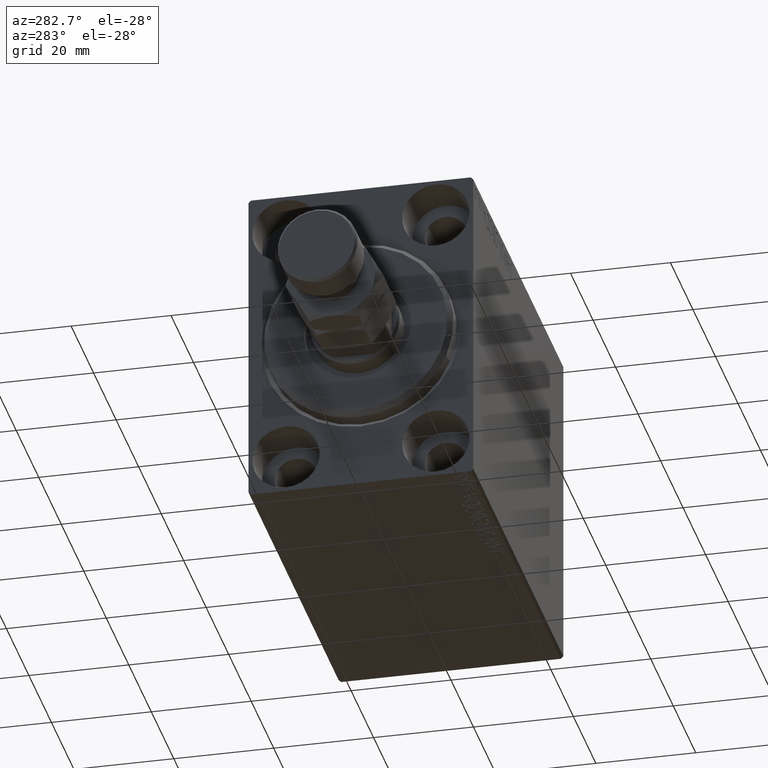
[diagram: clean part render]
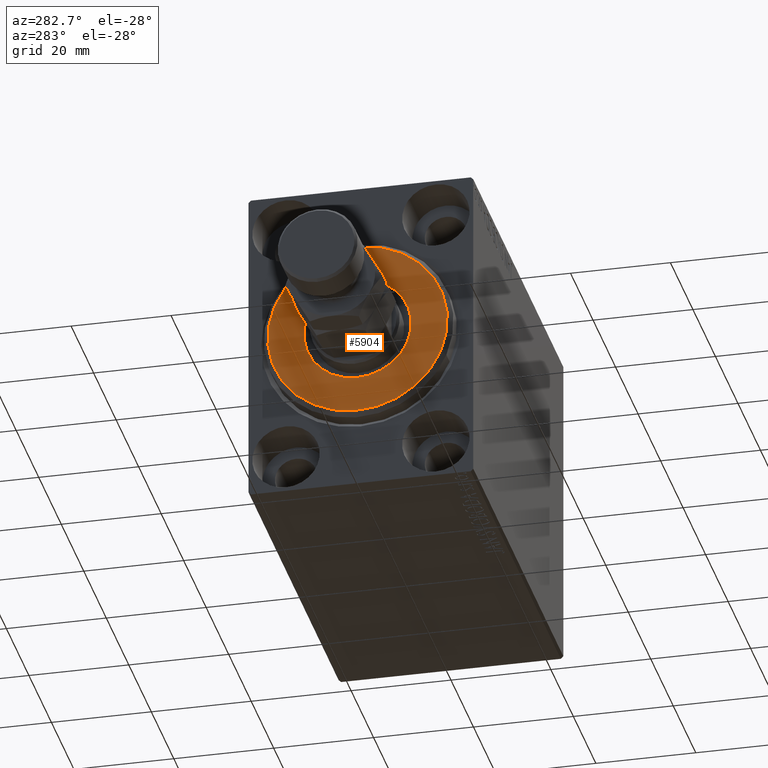
[diagram: same view with one face highlighted and labeled with its STEP entity id]
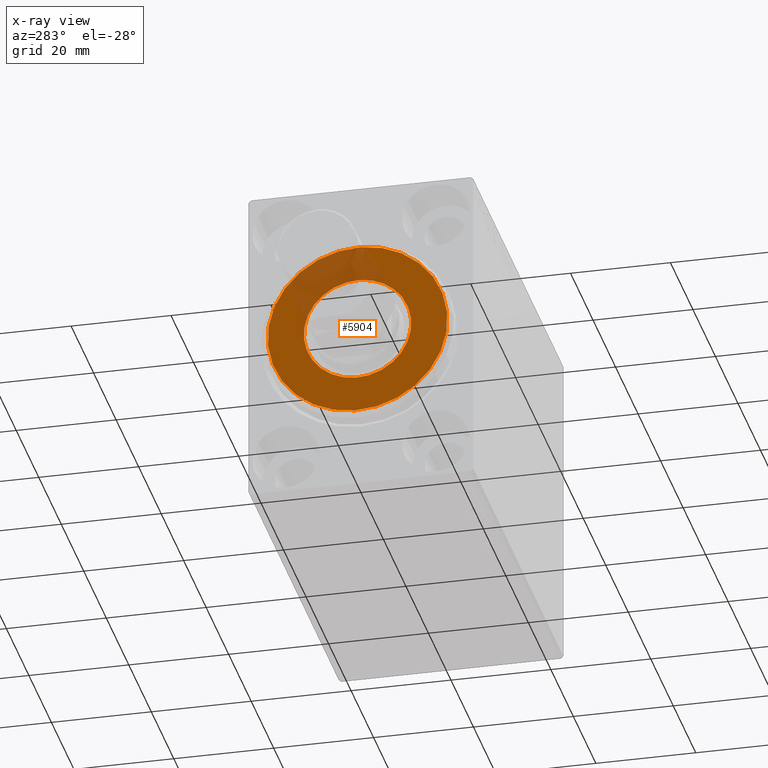
[diagram: x-ray of the same camera — body ghosted, the highlighted face saturated]
A machine part, auxiliary view. The second image highlights one B-rep face of the part: STEP entity #5904.
The next image is the same camera in x-ray: the body ghosted, the highlighted face saturated — about 21% of this face is hidden behind the body in this view.
In plain terms, the highlighted planar face has unit normal (-1, 0, 0).
Its self-contained STEP definition (entity closure, byte-faithful):
#131 = DIRECTION ( 'NONE',  ( 0.000000000000000000, 0.000000000000000000, -1.000000000000000000 ) ) ;
#171 = CARTESIAN_POINT ( 'NONE',  ( 3.000000000000000000, 0.000000000000000000, 0.000000000000000000 ) ) ;
#1124 = VERTEX_POINT ( 'NONE', #44228 ) ;
#3476 = EDGE_CURVE ( 'NONE', #7577, #4686, #32978, .T. ) ;
#3644 = DIRECTION ( 'NONE',  ( 0.000000000000000000, 0.000000000000000000, -1.000000000000000000 ) ) ;
#4686 = VERTEX_POINT ( 'NONE', #4733 ) ;
#4733 = CARTESIAN_POINT ( 'NONE',  ( 3.000000000000000000, 2.265596578422603002E-15, -17.99999999999999645 ) ) ;
#5187 = EDGE_LOOP ( 'NONE', ( #25722, #7593 ) ) ;
#5904 = ADVANCED_FACE ( 'NONE', ( #16285, #19991 ), #30313, .T. ) ;
#6206 = CARTESIAN_POINT ( 'NONE',  ( 3.000000000000000000, 0.000000000000000000, 0.000000000000000000 ) ) ;
#7577 = VERTEX_POINT ( 'NONE', #35351 ) ;
#7593 = ORIENTED_EDGE ( 'NONE', *, *, #7768, .T. ) ;
#7768 = EDGE_CURVE ( 'NONE', #4686, #7577, #44717, .T. ) ;
#8733 = DIRECTION ( 'NONE',  ( 1.000000000000000000, -0.000000000000000000, 0.000000000000000000 ) ) ;
#9656 = DIRECTION ( 'NONE',  ( 0.000000000000000000, 0.000000000000000000, -1.000000000000000000 ) ) ;
#11207 = DIRECTION ( 'NONE',  ( -1.000000000000000000, 0.000000000000000000, -0.000000000000000000 ) ) ;
#13908 = CARTESIAN_POINT ( 'NONE',  ( 3.000000000000000000, 0.000000000000000000, 0.000000000000000000 ) ) ;
#13909 = AXIS2_PLACEMENT_3D ( 'NONE', #13908, #38498, #131 ) ;
#15149 = EDGE_CURVE ( 'NONE', #29222, #1124, #36665, .T. ) ;
#15870 = EDGE_LOOP ( 'NONE', ( #31894, #44951 ) ) ;
#16285 = FACE_OUTER_BOUND ( 'NONE', #5187, .T. ) ;
#17122 = EDGE_CURVE ( 'NONE', #1124, #29222, #23449, .T. ) ;
#19991 = FACE_BOUND ( 'NONE', #15870, .T. ) ;
#20662 = CARTESIAN_POINT ( 'NONE',  ( 3.000000000000000000, 0.000000000000000000, 0.000000000000000000 ) ) ;
#21314 = DIRECTION ( 'NONE',  ( 0.000000000000000000, 0.000000000000000000, -1.000000000000000000 ) ) ;
#23449 = CIRCLE ( 'NONE', #41840, 10.75000000000000000 ) ;
#24739 = DIRECTION ( 'NONE',  ( 1.000000000000000000, -0.000000000000000000, 0.000000000000000000 ) ) ;
#25610 = AXIS2_PLACEMENT_3D ( 'NONE', #20662, #24739, #3644 ) ;
#25722 = ORIENTED_EDGE ( 'NONE', *, *, #3476, .T. ) ;
#27085 = CARTESIAN_POINT ( 'NONE',  ( 3.000000000000000000, 0.000000000000000000, 0.000000000000000000 ) ) ;
#29222 = VERTEX_POINT ( 'NONE', #44099 ) ;
#30313 = PLANE ( 'NONE',  #37409 ) ;
#31894 = ORIENTED_EDGE ( 'NONE', *, *, #17122, .T. ) ;
#32978 = CIRCLE ( 'NONE', #13909, 17.99999999999999645 ) ;
#32988 = AXIS2_PLACEMENT_3D ( 'NONE', #171, #11207, #21314 ) ;
#33542 = DIRECTION ( 'NONE',  ( 0.000000000000000000, 0.000000000000000000, -1.000000000000000000 ) ) ;
#33773 = DIRECTION ( 'NONE',  ( -1.000000000000000000, 0.000000000000000000, -0.000000000000000000 ) ) ;
#35351 = CARTESIAN_POINT ( 'NONE',  ( 3.000000000000000000, 0.000000000000000000, 17.99999999999999645 ) ) ;
#36665 = CIRCLE ( 'NONE', #32988, 10.75000000000000000 ) ;
#37409 = AXIS2_PLACEMENT_3D ( 'NONE', #6206, #8733, #33542 ) ;
#38498 = DIRECTION ( 'NONE',  ( 1.000000000000000000, -0.000000000000000000, 0.000000000000000000 ) ) ;
#41840 = AXIS2_PLACEMENT_3D ( 'NONE', #27085, #33773, #9656 ) ;
#44099 = CARTESIAN_POINT ( 'NONE',  ( 3.000000000000000000, 1.316495309083404223E-15, -10.75000000000000000 ) ) ;
#44228 = CARTESIAN_POINT ( 'NONE',  ( 3.000000000000000000, 0.000000000000000000, 10.75000000000000000 ) ) ;
#44717 = CIRCLE ( 'NONE', #25610, 17.99999999999999645 ) ;
#44951 = ORIENTED_EDGE ( 'NONE', *, *, #15149, .T. ) ;